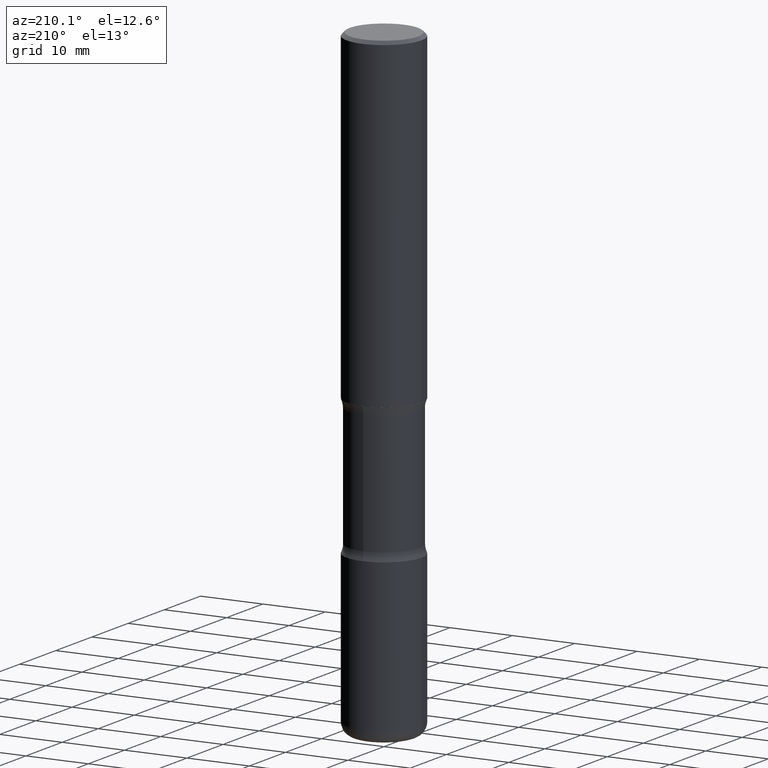
[diagram: clean part render]
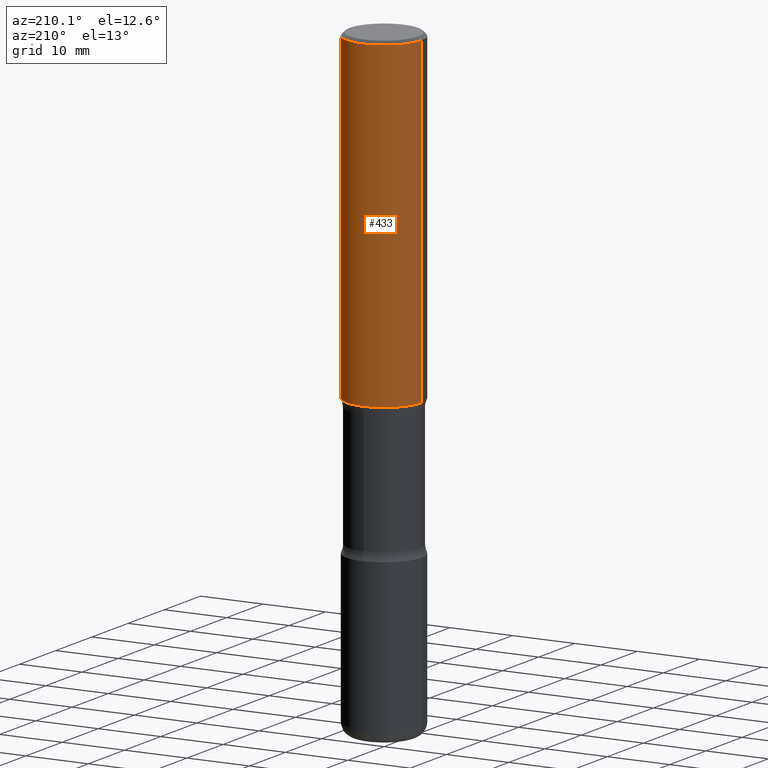
[diagram: same view with one face highlighted and labeled with its STEP entity id]
A machine part, auxiliary view. The second image highlights one B-rep face of the part: STEP entity #433.
In plain terms, the highlighted cylindrical surface (partial cylindrical patch) has radius 5.9995 mm, axis along (-0, 0, 1).
Its self-contained STEP definition (entity closure, byte-faithful):
#9 = AXIS2_PLACEMENT_3D ( 'NONE', #403, #28, #137 ) ;
#26 = VERTEX_POINT ( 'NONE', #123 ) ;
#28 = DIRECTION ( 'NONE',  ( -2.445468806185136597E-29, 3.491481338843145583E-15, 1.000000000000000000 ) ) ;
#31 = VERTEX_POINT ( 'NONE', #50 ) ;
#50 = CARTESIAN_POINT ( 'NONE',  ( -0.2362000000000001598, -1.930493169962915017E-15, -2.047200000000000131 ) ) ;
#82 = EDGE_CURVE ( 'NONE', #26, #220, #375, .T. ) ;
#89 = CARTESIAN_POINT ( 'NONE',  ( 0.2361999999999999933, -1.649375784469496131E-15, 1.151752954443000088E-29 ) ) ;
#103 = CARTESIAN_POINT ( 'NONE',  ( 5.006363740022212241E-29, -7.147760596879688202E-15, -2.047200000000000131 ) ) ;
#110 = VECTOR ( 'NONE', #465, 39.37007874015748143 ) ;
#114 = VERTEX_POINT ( 'NONE', #303 ) ;
#115 = EDGE_LOOP ( 'NONE', ( #293, #460, #442, #239 ) ) ;
#123 = CARTESIAN_POINT ( 'NONE',  ( 0.2362000000000001321, -8.797136381349186305E-15, -2.047200000000000131 ) ) ;
#137 = DIRECTION ( 'NONE',  ( 1.000000000000000000, -6.982962677686267499E-15, 0.000000000000000000 ) ) ;
#145 = DIRECTION ( 'NONE',  ( 1.000000000000000000, -6.982962677686269077E-15, 0.000000000000000000 ) ) ;
#220 = VERTEX_POINT ( 'NONE', #307 ) ;
#221 = DIRECTION ( 'NONE',  ( -2.445468806185136597E-29, 3.491481338843145583E-15, 1.000000000000000000 ) ) ;
#239 = ORIENTED_EDGE ( 'NONE', *, *, #82, .F. ) ;
#244 = CIRCLE ( 'NONE', #9, 0.2361999999999998823 ) ;
#255 = DIRECTION ( 'NONE',  ( -2.445468806185136877E-29, 3.491481338843145188E-15, 1.000000000000000000 ) ) ;
#271 = VECTOR ( 'NONE', #255, 39.37007874015748143 ) ;
#272 = DIRECTION ( 'NONE',  ( -2.445468806185136597E-29, 3.491481338843145583E-15, 1.000000000000000000 ) ) ;
#293 = ORIENTED_EDGE ( 'NONE', *, *, #395, .T. ) ;
#303 = CARTESIAN_POINT ( 'NONE',  ( -0.2361999999999998823, 1.579546157692632438E-15, -0.02000000000000006981 ) ) ;
#307 = CARTESIAN_POINT ( 'NONE',  ( 0.2361999999999998823, -1.690279253850498179E-15, -0.02000000000000006981 ) ) ;
#327 = CIRCLE ( 'NONE', #425, 0.2362000000000001321 ) ;
#340 = EDGE_CURVE ( 'NONE', #31, #114, #510, .T. ) ;
#347 = CARTESIAN_POINT ( 'NONE',  ( -0.2361999999999999933, 1.678301941865356591E-15, -1.161852468318208757E-29 ) ) ;
#360 = DIRECTION ( 'NONE',  ( 1.000000000000000000, -6.982962677686266711E-15, 4.876176775795936353E-29 ) ) ;
#375 = LINE ( 'NONE', #89, #271 ) ;
#395 = EDGE_CURVE ( 'NONE', #26, #31, #327, .T. ) ;
#403 = CARTESIAN_POINT ( 'NONE',  ( 4.890937612370289799E-31, -6.982962677686315028E-17, -0.02000000000000006981 ) ) ;
#425 = AXIS2_PLACEMENT_3D ( 'NONE', #103, #272, #145 ) ;
#433 = ADVANCED_FACE ( 'NONE', ( #443 ), #532, .T. ) ;
#442 = ORIENTED_EDGE ( 'NONE', *, *, #514, .F. ) ;
#443 = FACE_OUTER_BOUND ( 'NONE', #115, .T. ) ;
#460 = ORIENTED_EDGE ( 'NONE', *, *, #340, .T. ) ;
#465 = DIRECTION ( 'NONE',  ( -2.445468806185136877E-29, 3.491481338843145188E-15, 1.000000000000000000 ) ) ;
#510 = LINE ( 'NONE', #347, #110 ) ;
#514 = EDGE_CURVE ( 'NONE', #220, #114, #244, .T. ) ;
#532 = CYLINDRICAL_SURFACE ( 'NONE', #546, 0.2361999999999999933 ) ;
#533 = CARTESIAN_POINT ( 'NONE',  ( 0.000000000000000000, 0.000000000000000000, 0.000000000000000000 ) ) ;
#546 = AXIS2_PLACEMENT_3D ( 'NONE', #533, #221, #360 ) ;